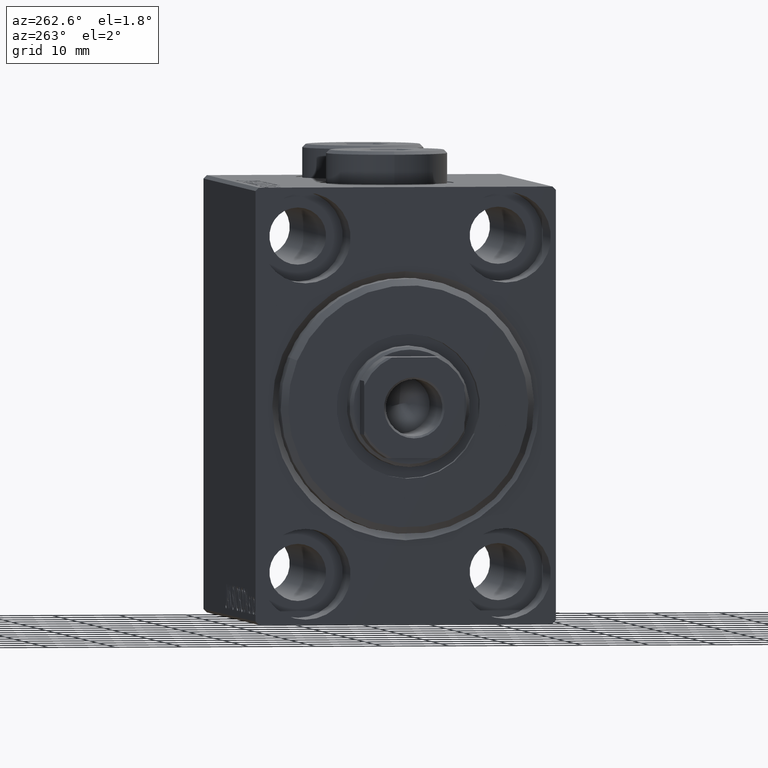
[diagram: clean part render]
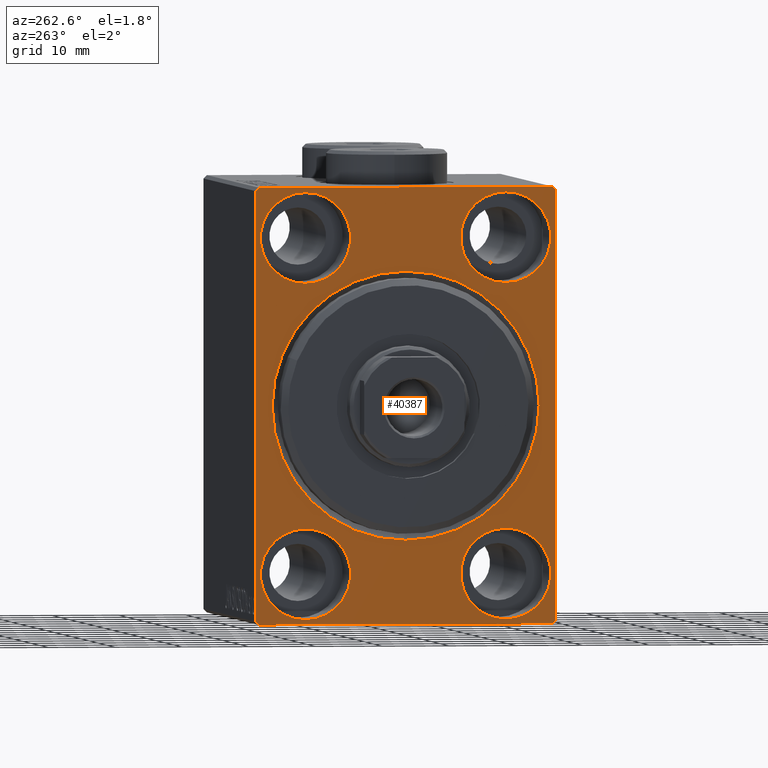
[diagram: same view with one face highlighted and labeled with its STEP entity id]
A machine part, auxiliary view. The second image highlights one B-rep face of the part: STEP entity #40387.
In plain terms, the highlighted planar face has unit normal (1, 0, 0).
Its self-contained STEP definition (entity closure, byte-faithful):
#5 = AXIS2_PLACEMENT_3D ( 'NONE', #21795, #35735, #43243 ) ;
#398 = DIRECTION ( 'NONE',  ( -1.000000000000000000, 0.000000000000000000, 0.000000000000000000 ) ) ;
#1107 = VERTEX_POINT ( 'NONE', #37706 ) ;
#1361 = EDGE_CURVE ( 'NONE', #25054, #22198, #26985, .T. ) ;
#1736 = ORIENTED_EDGE ( 'NONE', *, *, #32279, .F. ) ;
#1749 = ORIENTED_EDGE ( 'NONE', *, *, #40496, .F. ) ;
#2015 = CARTESIAN_POINT ( 'NONE',  ( 0.000000000000000000, 2.449293598294705330E-15, -19.99999999999998934 ) ) ;
#2111 = DIRECTION ( 'NONE',  ( 0.000000000000000000, -0.7071067811865376918, -0.7071067811865574537 ) ) ;
#2165 = VECTOR ( 'NONE', #12744, 1000.000000000000000 ) ;
#2276 = FACE_BOUND ( 'NONE', #14977, .T. ) ;
#2449 = DIRECTION ( 'NONE',  ( -1.000000000000000000, 0.000000000000000000, 0.000000000000000000 ) ) ;
#2574 = CARTESIAN_POINT ( 'NONE',  ( 0.000000000000000000, 22.50000000000000000, -31.99999999999999289 ) ) ;
#2846 = VERTEX_POINT ( 'NONE', #32711 ) ;
#3097 = CARTESIAN_POINT ( 'NONE',  ( 0.000000000000000000, -22.50000000000000711, 31.99999999999999289 ) ) ;
#4027 = CARTESIAN_POINT ( 'NONE',  ( 0.000000000000000000, 15.00000000000000355, 25.00000000000000000 ) ) ;
#4293 = VERTEX_POINT ( 'NONE', #23692 ) ;
#4326 = AXIS2_PLACEMENT_3D ( 'NONE', #40845, #2449, #23714 ) ;
#4878 = DIRECTION ( 'NONE',  ( 0.000000000000000000, 0.000000000000000000, -1.000000000000000000 ) ) ;
#5233 = VERTEX_POINT ( 'NONE', #26945 ) ;
#5274 = VECTOR ( 'NONE', #33941, 1000.000000000000000 ) ;
#5977 = CIRCLE ( 'NONE', #43944, 6.749999999999999112 ) ;
#6077 = CIRCLE ( 'NONE', #30168, 6.749999999999999112 ) ;
#6104 = CIRCLE ( 'NONE', #15616, 6.749999999999999112 ) ;
#6154 = FACE_BOUND ( 'NONE', #7310, .T. ) ;
#6526 = CARTESIAN_POINT ( 'NONE',  ( 0.000000000000000000, 14.99999999999999645, -25.00000000000000000 ) ) ;
#6926 = VECTOR ( 'NONE', #23290, 1000.000000000000000 ) ;
#7212 = EDGE_CURVE ( 'NONE', #22551, #23879, #26465, .T. ) ;
#7310 = EDGE_LOOP ( 'NONE', ( #25588, #29477 ) ) ;
#7512 = DIRECTION ( 'NONE',  ( 0.000000000000000000, 0.000000000000000000, 1.000000000000000000 ) ) ;
#7641 = AXIS2_PLACEMENT_3D ( 'NONE', #38836, #21019, #7512 ) ;
#7717 = ORIENTED_EDGE ( 'NONE', *, *, #32092, .F. ) ;
#8202 = VERTEX_POINT ( 'NONE', #18304 ) ;
#9795 = CARTESIAN_POINT ( 'NONE',  ( 0.000000000000000000, 15.00000000000000355, 18.25000000000000355 ) ) ;
#9865 = ORIENTED_EDGE ( 'NONE', *, *, #36204, .T. ) ;
#9969 = DIRECTION ( 'NONE',  ( 0.000000000000000000, 0.000000000000000000, 1.000000000000000000 ) ) ;
#10477 = DIRECTION ( 'NONE',  ( 0.000000000000000000, 0.000000000000000000, 1.000000000000000000 ) ) ;
#10650 = LINE ( 'NONE', #22438, #31228 ) ;
#10714 = VERTEX_POINT ( 'NONE', #19376 ) ;
#10842 = DIRECTION ( 'NONE',  ( 0.000000000000000000, 0.000000000000000000, 1.000000000000000000 ) ) ;
#11137 = ORIENTED_EDGE ( 'NONE', *, *, #19647, .F. ) ;
#11151 = CIRCLE ( 'NONE', #36690, 6.749999999999999112 ) ;
#11184 = EDGE_CURVE ( 'NONE', #4293, #33963, #17644, .T. ) ;
#11275 = VECTOR ( 'NONE', #20037, 1000.000000000000114 ) ;
#11780 = VERTEX_POINT ( 'NONE', #41022 ) ;
#12706 = ORIENTED_EDGE ( 'NONE', *, *, #35258, .T. ) ;
#12744 = DIRECTION ( 'NONE',  ( 0.000000000000000000, -1.067522139062650425E-16, 1.000000000000000000 ) ) ;
#12833 = EDGE_CURVE ( 'NONE', #1107, #23879, #10650, .T. ) ;
#13906 = CIRCLE ( 'NONE', #5, 6.749999999999999112 ) ;
#14977 = EDGE_LOOP ( 'NONE', ( #1749, #16541 ) ) ;
#15502 = ORIENTED_EDGE ( 'NONE', *, *, #7212, .F. ) ;
#15542 = VERTEX_POINT ( 'NONE', #44526 ) ;
#15616 = AXIS2_PLACEMENT_3D ( 'NONE', #22253, #18603, #10842 ) ;
#15708 = CARTESIAN_POINT ( 'NONE',  ( 0.000000000000000000, 22.50000000000000000, -31.99999999999999289 ) ) ;
#16034 = DIRECTION ( 'NONE',  ( 0.000000000000000000, -1.000000000000000000, -1.541976423090495387E-16 ) ) ;
#16226 = VERTEX_POINT ( 'NONE', #30676 ) ;
#16466 = PLANE ( 'NONE',  #22258 ) ;
#16541 = ORIENTED_EDGE ( 'NONE', *, *, #1361, .F. ) ;
#17644 = LINE ( 'NONE', #41860, #5274 ) ;
#17815 = VECTOR ( 'NONE', #34838, 1000.000000000000000 ) ;
#18304 = CARTESIAN_POINT ( 'NONE',  ( 0.000000000000000000, -14.99999999999999645, 18.25000000000000355 ) ) ;
#18424 = DIRECTION ( 'NONE',  ( -1.000000000000000000, 0.000000000000000000, 0.000000000000000000 ) ) ;
#18560 = EDGE_CURVE ( 'NONE', #22551, #33963, #44386, .T. ) ;
#18603 = DIRECTION ( 'NONE',  ( -1.000000000000000000, 0.000000000000000000, 0.000000000000000000 ) ) ;
#19069 = DIRECTION ( 'NONE',  ( 1.000000000000000000, 0.000000000000000000, 0.000000000000000000 ) ) ;
#19187 = CARTESIAN_POINT ( 'NONE',  ( 0.000000000000000000, -22.00000000000002132, -32.50000000000000711 ) ) ;
#19343 = EDGE_CURVE ( 'NONE', #5233, #40764, #28489, .T. ) ;
#19376 = CARTESIAN_POINT ( 'NONE',  ( 0.000000000000000000, -21.99999999999999289, 32.49999999999999289 ) ) ;
#19434 = FACE_BOUND ( 'NONE', #43637, .T. ) ;
#19647 = EDGE_CURVE ( 'NONE', #1107, #10714, #43438, .T. ) ;
#19806 = LINE ( 'NONE', #3097, #11275 ) ;
#20037 = DIRECTION ( 'NONE',  ( -0.000000000000000000, 0.7071067811865474617, 0.7071067811865474617 ) ) ;
#20335 = FACE_BOUND ( 'NONE', #29958, .T. ) ;
#20649 = CARTESIAN_POINT ( 'NONE',  ( 0.000000000000000000, -15.00000000000000355, -18.25000000000000355 ) ) ;
#21019 = DIRECTION ( 'NONE',  ( -1.000000000000000000, 0.000000000000000000, 0.000000000000000000 ) ) ;
#21095 = DIRECTION ( 'NONE',  ( 0.000000000000000000, 0.000000000000000000, 1.000000000000000000 ) ) ;
#21795 = CARTESIAN_POINT ( 'NONE',  ( 0.000000000000000000, 15.00000000000000355, 25.00000000000000000 ) ) ;
#21988 = ORIENTED_EDGE ( 'NONE', *, *, #18560, .T. ) ;
#22018 = VERTEX_POINT ( 'NONE', #22945 ) ;
#22198 = VERTEX_POINT ( 'NONE', #20649 ) ;
#22253 = CARTESIAN_POINT ( 'NONE',  ( 0.000000000000000000, -14.99999999999999645, 25.00000000000000000 ) ) ;
#22258 = AXIS2_PLACEMENT_3D ( 'NONE', #29945, #23544, #33368 ) ;
#22351 = ORIENTED_EDGE ( 'NONE', *, *, #11184, .F. ) ;
#22438 = CARTESIAN_POINT ( 'NONE',  ( 0.000000000000000000, 21.99999999999999289, 32.50000000000000000 ) ) ;
#22551 = VERTEX_POINT ( 'NONE', #15708 ) ;
#22665 = VECTOR ( 'NONE', #16034, 1000.000000000000000 ) ;
#22945 = CARTESIAN_POINT ( 'NONE',  ( 0.000000000000000000, -22.50000000000000711, -32.00000000000000711 ) ) ;
#23290 = DIRECTION ( 'NONE',  ( -0.000000000000000000, -0.7071067811865378028, 0.7071067811865573427 ) ) ;
#23544 = DIRECTION ( 'NONE',  ( 1.000000000000000000, 0.000000000000000000, 0.000000000000000000 ) ) ;
#23692 = CARTESIAN_POINT ( 'NONE',  ( 0.000000000000000000, -22.00000000000002132, -32.50000000000000711 ) ) ;
#23713 = ORIENTED_EDGE ( 'NONE', *, *, #28742, .F. ) ;
#23714 = DIRECTION ( 'NONE',  ( 0.000000000000000000, 0.000000000000000000, 1.000000000000000000 ) ) ;
#23879 = VERTEX_POINT ( 'NONE', #36844 ) ;
#23981 = ORIENTED_EDGE ( 'NONE', *, *, #12833, .T. ) ;
#24113 = VECTOR ( 'NONE', #2111, 999.9999999999998863 ) ;
#24143 = AXIS2_PLACEMENT_3D ( 'NONE', #45069, #27275, #21095 ) ;
#24378 = DIRECTION ( 'NONE',  ( -1.000000000000000000, 0.000000000000000000, 0.000000000000000000 ) ) ;
#24479 = EDGE_CURVE ( 'NONE', #43002, #2846, #13906, .T. ) ;
#24598 = DIRECTION ( 'NONE',  ( -0.000000000000000000, 0.7071067811865425767, -0.7071067811865525687 ) ) ;
#25054 = VERTEX_POINT ( 'NONE', #33549 ) ;
#25438 = EDGE_CURVE ( 'NONE', #36194, #11780, #31455, .T. ) ;
#25588 = ORIENTED_EDGE ( 'NONE', *, *, #19343, .F. ) ;
#25702 = EDGE_LOOP ( 'NONE', ( #1736, #12706, #11137, #23981, #15502, #21988, #22351, #9865 ) ) ;
#25854 = ORIENTED_EDGE ( 'NONE', *, *, #24479, .F. ) ;
#26465 = LINE ( 'NONE', #44716, #2165 ) ;
#26793 = EDGE_LOOP ( 'NONE', ( #7717, #25854 ) ) ;
#26945 = CARTESIAN_POINT ( 'NONE',  ( 0.000000000000000000, 14.99999999999999645, -18.25000000000000355 ) ) ;
#26964 = FACE_OUTER_BOUND ( 'NONE', #25702, .T. ) ;
#26985 = CIRCLE ( 'NONE', #4326, 6.749999999999999112 ) ;
#27275 = DIRECTION ( 'NONE',  ( -1.000000000000000000, 0.000000000000000000, 0.000000000000000000 ) ) ;
#27368 = CIRCLE ( 'NONE', #7641, 6.749999999999999112 ) ;
#27989 = LINE ( 'NONE', #30963, #17815 ) ;
#28489 = CIRCLE ( 'NONE', #24143, 6.749999999999999112 ) ;
#28742 = EDGE_CURVE ( 'NONE', #8202, #16226, #5977, .T. ) ;
#29345 = EDGE_CURVE ( 'NONE', #11780, #36194, #40304, .T. ) ;
#29361 = CARTESIAN_POINT ( 'NONE',  ( 0.000000000000000000, 0.000000000000000000, 0.000000000000000000 ) ) ;
#29477 = ORIENTED_EDGE ( 'NONE', *, *, #29923, .F. ) ;
#29698 = LINE ( 'NONE', #19187, #6926 ) ;
#29903 = ORIENTED_EDGE ( 'NONE', *, *, #29345, .T. ) ;
#29923 = EDGE_CURVE ( 'NONE', #40764, #5233, #11151, .T. ) ;
#29945 = CARTESIAN_POINT ( 'NONE',  ( 0.000000000000000000, 0.000000000000000000, 0.000000000000000000 ) ) ;
#29958 = EDGE_LOOP ( 'NONE', ( #38293, #23713 ) ) ;
#30111 = AXIS2_PLACEMENT_3D ( 'NONE', #29361, #19069, #4878 ) ;
#30168 = AXIS2_PLACEMENT_3D ( 'NONE', #4027, #18424, #42187 ) ;
#30676 = CARTESIAN_POINT ( 'NONE',  ( 0.000000000000000000, -14.99999999999999645, 31.75000000000000000 ) ) ;
#30963 = CARTESIAN_POINT ( 'NONE',  ( 0.000000000000000000, -22.50000000000000711, 32.49999999999999289 ) ) ;
#31228 = VECTOR ( 'NONE', #24598, 999.9999999999998863 ) ;
#31455 = CIRCLE ( 'NONE', #37278, 19.99999999999998934 ) ;
#32092 = EDGE_CURVE ( 'NONE', #2846, #43002, #6077, .T. ) ;
#32279 = EDGE_CURVE ( 'NONE', #15542, #22018, #27989, .T. ) ;
#32470 = ORIENTED_EDGE ( 'NONE', *, *, #25438, .T. ) ;
#32711 = CARTESIAN_POINT ( 'NONE',  ( 0.000000000000000000, 15.00000000000000355, 31.75000000000000000 ) ) ;
#33265 = DIRECTION ( 'NONE',  ( 1.000000000000000000, 0.000000000000000000, 0.000000000000000000 ) ) ;
#33368 = DIRECTION ( 'NONE',  ( 0.000000000000000000, 0.000000000000000000, -1.000000000000000000 ) ) ;
#33393 = CARTESIAN_POINT ( 'NONE',  ( 0.000000000000000000, 22.49999999999999289, 32.50000000000000000 ) ) ;
#33549 = CARTESIAN_POINT ( 'NONE',  ( 0.000000000000000000, -15.00000000000000355, -31.75000000000000000 ) ) ;
#33941 = DIRECTION ( 'NONE',  ( 0.000000000000000000, 1.000000000000000000, 0.000000000000000000 ) ) ;
#33963 = VERTEX_POINT ( 'NONE', #41541 ) ;
#34709 = CARTESIAN_POINT ( 'NONE',  ( 0.000000000000000000, -14.99999999999999645, 25.00000000000000000 ) ) ;
#34838 = DIRECTION ( 'NONE',  ( 0.000000000000000000, 0.000000000000000000, -1.000000000000000000 ) ) ;
#35258 = EDGE_CURVE ( 'NONE', #15542, #10714, #19806, .T. ) ;
#35735 = DIRECTION ( 'NONE',  ( -1.000000000000000000, 0.000000000000000000, 0.000000000000000000 ) ) ;
#36194 = VERTEX_POINT ( 'NONE', #2015 ) ;
#36204 = EDGE_CURVE ( 'NONE', #4293, #22018, #29698, .T. ) ;
#36690 = AXIS2_PLACEMENT_3D ( 'NONE', #6526, #24378, #9969 ) ;
#36844 = CARTESIAN_POINT ( 'NONE',  ( 0.000000000000000000, 22.49999999999999289, 31.99999999999999289 ) ) ;
#37278 = AXIS2_PLACEMENT_3D ( 'NONE', #40786, #33265, #43986 ) ;
#37612 = EDGE_CURVE ( 'NONE', #16226, #8202, #6104, .T. ) ;
#37706 = CARTESIAN_POINT ( 'NONE',  ( 0.000000000000000000, 21.99999999999999289, 32.50000000000000000 ) ) ;
#38293 = ORIENTED_EDGE ( 'NONE', *, *, #37612, .F. ) ;
#38836 = CARTESIAN_POINT ( 'NONE',  ( 0.000000000000000000, -15.00000000000000355, -25.00000000000000000 ) ) ;
#40304 = CIRCLE ( 'NONE', #30111, 19.99999999999998934 ) ;
#40387 = ADVANCED_FACE ( 'NONE', ( #19434, #6154, #20335, #44773, #2276, #26964 ), #16466, .F. ) ;
#40496 = EDGE_CURVE ( 'NONE', #22198, #25054, #27368, .T. ) ;
#40764 = VERTEX_POINT ( 'NONE', #41021 ) ;
#40786 = CARTESIAN_POINT ( 'NONE',  ( 0.000000000000000000, 0.000000000000000000, 0.000000000000000000 ) ) ;
#40845 = CARTESIAN_POINT ( 'NONE',  ( 0.000000000000000000, -15.00000000000000355, -25.00000000000000000 ) ) ;
#41021 = CARTESIAN_POINT ( 'NONE',  ( 0.000000000000000000, 14.99999999999999645, -31.75000000000000000 ) ) ;
#41022 = CARTESIAN_POINT ( 'NONE',  ( 0.000000000000000000, 0.000000000000000000, 19.99999999999998934 ) ) ;
#41541 = CARTESIAN_POINT ( 'NONE',  ( 0.000000000000000000, 21.99999999999998579, -32.50000000000000711 ) ) ;
#41860 = CARTESIAN_POINT ( 'NONE',  ( 0.000000000000000000, -22.50000000000000711, -32.50000000000000711 ) ) ;
#42187 = DIRECTION ( 'NONE',  ( 0.000000000000000000, 0.000000000000000000, 1.000000000000000000 ) ) ;
#43002 = VERTEX_POINT ( 'NONE', #9795 ) ;
#43243 = DIRECTION ( 'NONE',  ( 0.000000000000000000, 0.000000000000000000, 1.000000000000000000 ) ) ;
#43438 = LINE ( 'NONE', #33393, #22665 ) ;
#43637 = EDGE_LOOP ( 'NONE', ( #29903, #32470 ) ) ;
#43944 = AXIS2_PLACEMENT_3D ( 'NONE', #34709, #398, #10477 ) ;
#43986 = DIRECTION ( 'NONE',  ( 0.000000000000000000, 0.000000000000000000, -1.000000000000000000 ) ) ;
#44386 = LINE ( 'NONE', #2574, #24113 ) ;
#44526 = CARTESIAN_POINT ( 'NONE',  ( 0.000000000000000000, -22.50000000000000711, 31.99999999999999289 ) ) ;
#44716 = CARTESIAN_POINT ( 'NONE',  ( 0.000000000000000000, 22.50000000000000000, -32.50000000000000711 ) ) ;
#44773 = FACE_BOUND ( 'NONE', #26793, .T. ) ;
#45069 = CARTESIAN_POINT ( 'NONE',  ( 0.000000000000000000, 14.99999999999999645, -25.00000000000000000 ) ) ;